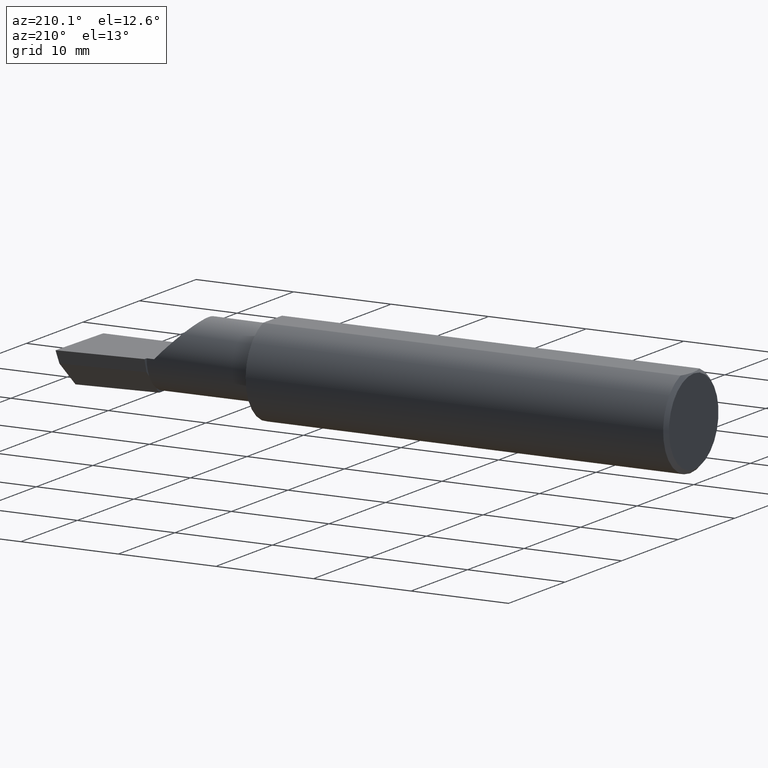
[diagram: clean part render]
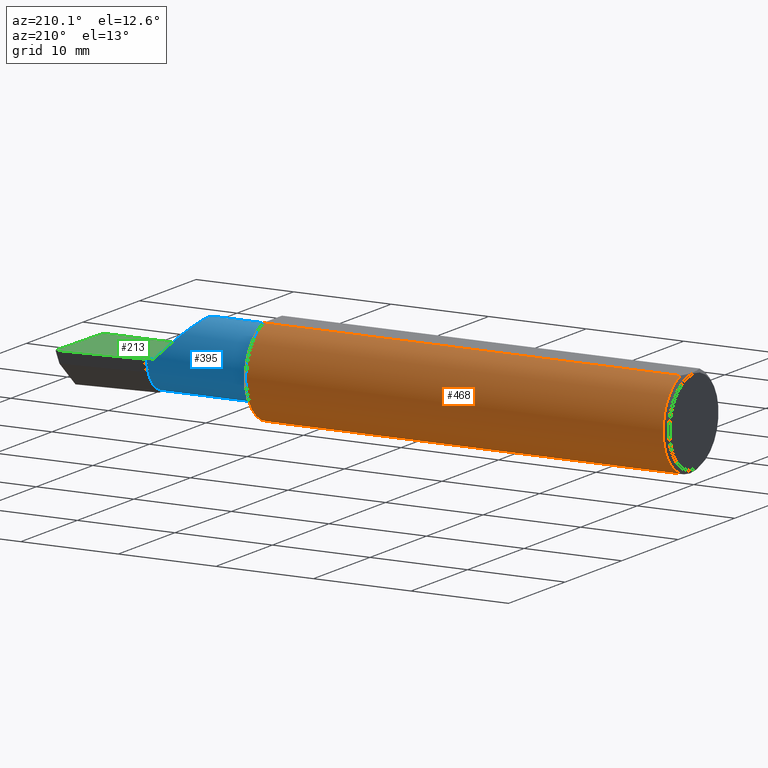
[diagram: same view with three faces highlighted in distinct colors, each labeled with its STEP entity id]
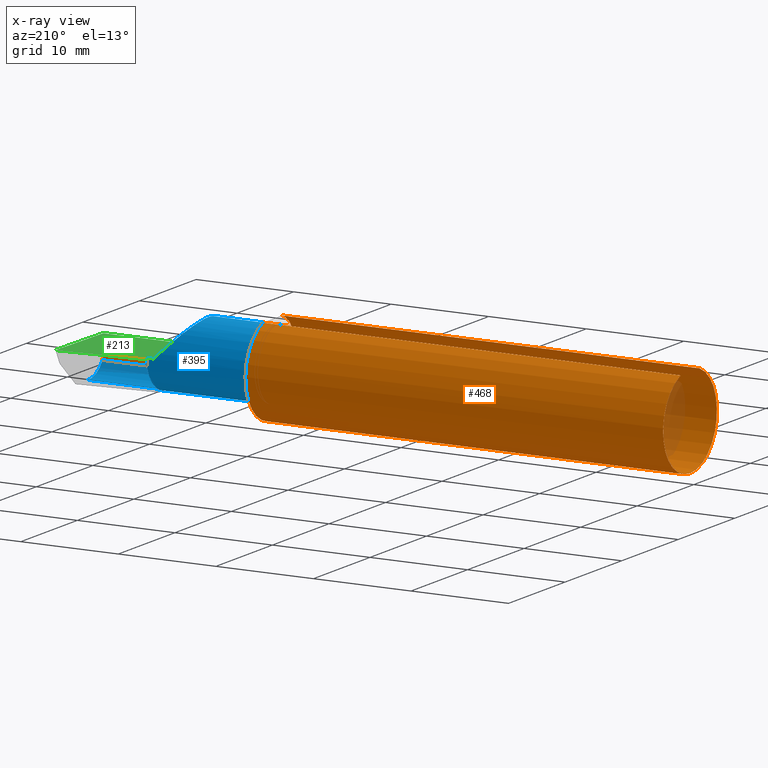
[diagram: x-ray of the same camera — body ghosted, the three highlighted faces saturated]
A machine part, auxiliary view with three faces highlighted in distinct colors.
The next image is the same camera in x-ray (body ghosted, the three faces saturated) — at least one of them is partly hidden behind the body in this view.
Their STEP definitions:

[orange] entity #468 — the highlighted cylindrical surface (partial cylindrical patch) has radius 4.7587 mm, axis along (-1, -0, -0).
#1 = ORIENTED_EDGE ( 'NONE', *, *, #519, .F. ) ;
#4 = AXIS2_PLACEMENT_3D ( 'NONE', #473, #232, #470 ) ;
#5 = DIRECTION ( 'NONE',  ( -1.000000000000000000, -0.000000000000000000, -0.000000000000000000 ) ) ;
#26 = CARTESIAN_POINT ( 'NONE',  ( 2.481080296960508580, -0.1635956445993030084, -0.09130436773856176469 ) ) ;
#30 = CARTESIAN_POINT ( 'NONE',  ( 1.712204638458737049, -0.1550630761760521670, 0.1052254855377565551 ) ) ;
#42 = EDGE_CURVE ( 'NONE', #275, #376, #399, .T. ) ;
#43 = VECTOR ( 'NONE', #286, 39.37007874015748143 ) ;
#49 = CARTESIAN_POINT ( 'NONE',  ( 1.701903396790307221, -0.1248165254919059997, -0.1399798634953948184 ) ) ;
#51 = EDGE_CURVE ( 'NONE', #80, #325, #625, .T. ) ;
#54 = ORIENTED_EDGE ( 'NONE', *, *, #530, .F. ) ;
#59 = CARTESIAN_POINT ( 'NONE',  ( 1.700000000000000178, -0.1045082199249679489, -0.1557306416133595883 ) ) ;
#62 = LINE ( 'NONE', #242, #99 ) ;
#68 = CARTESIAN_POINT ( 'NONE',  ( 1.716855994529494334, -0.1603175578889966812, 0.09696363432848482955 ) ) ;
#69 = VERTEX_POINT ( 'NONE', #534 ) ;
#73 = CARTESIAN_POINT ( 'NONE',  ( 0.01499999999999999424, 0.06597272163553663527, 0.1753499999999999781 ) ) ;
#78 = VECTOR ( 'NONE', #5, 39.37007874015748143 ) ;
#79 = CARTESIAN_POINT ( 'NONE',  ( 2.481080296960508580, -0.1635956445993030084, -0.09130436773856176469 ) ) ;
#80 = VERTEX_POINT ( 'NONE', #73 ) ;
#84 = VERTEX_POINT ( 'NONE', #173 ) ;
#85 = FACE_OUTER_BOUND ( 'NONE', #413, .T. ) ;
#87 = LINE ( 'NONE', #227, #602 ) ;
#90 = ORIENTED_EDGE ( 'NONE', *, *, #274, .F. ) ;
#92 = ORIENTED_EDGE ( 'NONE', *, *, #596, .F. ) ;
#93 = EDGE_CURVE ( 'NONE', #448, #420, #514, .T. ) ;
#94 = CARTESIAN_POINT ( 'NONE',  ( 2.487725449370724817, -0.1873500000000000443, -0.03213820089768506388 ) ) ;
#99 = VECTOR ( 'NONE', #584, 39.37007874015748143 ) ;
#104 = VERTEX_POINT ( 'NONE', #459 ) ;
#119 = CIRCLE ( 'NONE', #308, 0.1873499999999999888 ) ;
#126 = DIRECTION ( 'NONE',  ( 0.000000000000000000, 1.000000000000000000, 0.000000000000000000 ) ) ;
#144 = CARTESIAN_POINT ( 'NONE',  ( 1.699999999999999956, -0.06597272163553659363, 0.1753499999999999781 ) ) ;
#145 = ORIENTED_EDGE ( 'NONE', *, *, #93, .T. ) ;
#148 = CARTESIAN_POINT ( 'NONE',  ( 1.699999999999999956, -0.09715400696864101571, -0.1601908905959925355 ) ) ;
#164 = CARTESIAN_POINT ( 'NONE',  ( 0.01499999999999997863, -0.06597272163553657975, 0.1753499999999999781 ) ) ;
#173 = CARTESIAN_POINT ( 'NONE',  ( 0.01499999999999999424, 0.000000000000000000, -0.1873499999999999888 ) ) ;
#176 =( BOUNDED_CURVE ( )  B_SPLINE_CURVE ( 3, ( #305, #567, #427, #183 ),
 .UNSPECIFIED., .F., .T. ) 
 B_SPLINE_CURVE_WITH_KNOTS ( ( 4, 4 ),
 ( 4.712388980384689674, 5.221437360734125122 ),
 .UNSPECIFIED. ) 
 CURVE ( )  GEOMETRIC_REPRESENTATION_ITEM ( )  RATIONAL_B_SPLINE_CURVE ( ( 1.000000000000000000, 0.9785221379938656705, 0.9785221379938656705, 1.000000000000000000 ) ) 
 REPRESENTATION_ITEM ( '' )  );
#182 = ORIENTED_EDGE ( 'NONE', *, *, #186, .F. ) ;
#183 = CARTESIAN_POINT ( 'NONE',  ( 2.038695632261437130, -0.1635956445993029529, 0.09130436773856191734 ) ) ;
#186 = EDGE_CURVE ( 'NONE', #80, #84, #233, .T. ) ;
#188 = CARTESIAN_POINT ( 'NONE',  ( 1.724999999999999867, -0.1635956445993029251, -0.09130436773856190347 ) ) ;
#196 = CARTESIAN_POINT ( 'NONE',  ( 3.377502344341257155E-32, -0.1873499999999999610, 3.267291166268304703E-16 ) ) ;
#198 = AXIS2_PLACEMENT_3D ( 'NONE', #402, #250, #442 ) ;
#211 = B_SPLINE_CURVE_WITH_KNOTS ( 'NONE', 3,
 ( #591, #353, #548, #409, #363, #599, #609, #30, #310, #68, #355, #315, #366, #258 ),
 .UNSPECIFIED., .F., .F.,
 ( 4, 2, 2, 2, 2, 2, 4 ),
 ( 0.0002471551878304205298, 0.0008987327522055599521, 0.001550310316580699212, 0.002201887880955839122, 0.002527676663143408210, 0.002690571054237193404, 0.002853465445330977731 ),
 .UNSPECIFIED. ) ;
#217 = CARTESIAN_POINT ( 'NONE',  ( 2.491672876940991710, -0.1873499999999999888, 6.915950918908297591E-17 ) ) ;
#218 = CARTESIAN_POINT ( 'NONE',  ( 2.484117089522337452, -0.1792580844883771007, -0.06324101202936138755 ) ) ;
#227 = CARTESIAN_POINT ( 'NONE',  ( 1.942499999999999893, -0.1635956445993030084, -0.09130436773856176469 ) ) ;
#229 = CARTESIAN_POINT ( 'NONE',  ( 1.724999999999999867, -0.1635956445993029251, -0.09130436773856190347 ) ) ;
#232 = DIRECTION ( 'NONE',  ( -1.000000000000000000, -0.000000000000000000, -0.000000000000000000 ) ) ;
#233 = CIRCLE ( 'NONE', #198, 0.1873499999999999888 ) ;
#242 = CARTESIAN_POINT ( 'NONE',  ( 1.942499999999999893, -0.1635956445993030084, 0.09130436773856176469 ) ) ;
#250 = DIRECTION ( 'NONE',  ( -1.000000000000000000, -0.000000000000000000, -0.000000000000000000 ) ) ;
#258 = CARTESIAN_POINT ( 'NONE',  ( 1.724999999999999867, -0.1635956445993027586, 0.09130436773856215327 ) ) ;
#262 = B_SPLINE_CURVE_WITH_KNOTS ( 'NONE', 3,
 ( #229, #332, #531, #283, #478, #430, #624, #532, #579, #495, #49, #488, #59, #148 ),
 .UNSPECIFIED., .F., .F.,
 ( 4, 2, 2, 2, 2, 2, 4 ),
 ( 1.968340875534775581E-07, 0.0001667114270246284366, 0.0003332260199617034032, 0.0006662552058358533905, 0.001332313577584147510, 0.001998371949332441305, 0.002664430321080735534 ),
 .UNSPECIFIED. ) ;
#274 = EDGE_CURVE ( 'NONE', #400, #316, #211, .T. ) ;
#275 = VERTEX_POINT ( 'NONE', #26 ) ;
#283 = CARTESIAN_POINT ( 'NONE',  ( 1.717975941902153192, -0.1612443294219078060, -0.09540922431498248535 ) ) ;
#286 = DIRECTION ( 'NONE',  ( -1.000000000000000000, -0.000000000000000000, -0.000000000000000000 ) ) ;
#290 = ORIENTED_EDGE ( 'NONE', *, *, #335, .F. ) ;
#305 = CARTESIAN_POINT ( 'NONE',  ( 2.129999999999999893, -0.1873499999999999888, 1.065442715258197396E-16 ) ) ;
#308 = AXIS2_PLACEMENT_3D ( 'NONE', #618, #612, #621 ) ;
#310 = CARTESIAN_POINT ( 'NONE',  ( 1.713764108097882932, -0.1573043405450769705, 0.1018329020719639239 ) ) ;
#315 = CARTESIAN_POINT ( 'NONE',  ( 1.720903862568968989, -0.1628809688430619684, 0.09258733509388511473 ) ) ;
#316 = VERTEX_POINT ( 'NONE', #508 ) ;
#325 = VERTEX_POINT ( 'NONE', #603 ) ;
#332 = CARTESIAN_POINT ( 'NONE',  ( 1.722779935319434408, -0.1635956445993029529, -0.09130436773856197286 ) ) ;
#335 = EDGE_CURVE ( 'NONE', #448, #400, #601, .T. ) ;
#353 = CARTESIAN_POINT ( 'NONE',  ( 1.699999999999999734, -0.1045012500212951778, 0.1557348687830036327 ) ) ;
#355 = CARTESIAN_POINT ( 'NONE',  ( 1.718001859868116821, -0.1612625562479369223, 0.09537826053888202871 ) ) ;
#363 = CARTESIAN_POINT ( 'NONE',  ( 1.703025912205683445, -0.1310442973014112333, 0.1341609063345044761 ) ) ;
#366 = CARTESIAN_POINT ( 'NONE',  ( 1.722800914500664637, -0.1635956445997546194, 0.09130436773775278680 ) ) ;
#370 = DIRECTION ( 'NONE',  ( 1.000000000000000000, 0.000000000000000000, 0.000000000000000000 ) ) ;
#373 = AXIS2_PLACEMENT_3D ( 'NONE', #528, #374, #522 ) ;
#374 = DIRECTION ( 'NONE',  ( -1.000000000000000000, -0.000000000000000000, -0.000000000000000000 ) ) ;
#376 = VERTEX_POINT ( 'NONE', #217 ) ;
#399 =( BOUNDED_CURVE ( )  B_SPLINE_CURVE ( 3, ( #79, #218, #94, #510 ),
 .UNSPECIFIED., .F., .F. ) 
 B_SPLINE_CURVE_WITH_KNOTS ( ( 4, 4 ),
 ( 0.8516985021657650368, 1.360746882515200484 ),
 .UNSPECIFIED. ) 
 CURVE ( )  GEOMETRIC_REPRESENTATION_ITEM ( )  RATIONAL_B_SPLINE_CURVE ( ( 1.000000000000000000, 0.9785221379938656705, 0.9785221379938656705, 1.000000000000000000 ) ) 
 REPRESENTATION_ITEM ( '' )  );
#400 = VERTEX_POINT ( 'NONE', #563 ) ;
#402 = CARTESIAN_POINT ( 'NONE',  ( 0.01499999999999999424, 0.000000000000000000, 0.000000000000000000 ) ) ;
#409 = CARTESIAN_POINT ( 'NONE',  ( 1.701891754936544654, -0.1247344934163565205, 0.1400506178720503370 ) ) ;
#410 = EDGE_CURVE ( 'NONE', #104, #443, #176, .T. ) ;
#413 = EDGE_LOOP ( 'NONE', ( #1, #497, #416, #617, #92, #90, #290, #145, #569, #182, #506, #588, #54 ) ) ;
#416 = ORIENTED_EDGE ( 'NONE', *, *, #562, .T. ) ;
#420 = VERTEX_POINT ( 'NONE', #164 ) ;
#423 = CYLINDRICAL_SURFACE ( 'NONE', #4, 0.1873499999999999888 ) ;
#427 = CARTESIAN_POINT ( 'NONE',  ( 2.066758987970638284, -0.1792580844883770730, 0.06324101202936138755 ) ) ;
#430 = CARTESIAN_POINT ( 'NONE',  ( 1.713743174082348997, -0.1572750258711007598, -0.1018777902325216644 ) ) ;
#437 = LINE ( 'NONE', #196, #78 ) ;
#439 = VERTEX_POINT ( 'NONE', #188 ) ;
#442 = DIRECTION ( 'NONE',  ( 0.000000000000000000, 0.000000000000000000, 1.000000000000000000 ) ) ;
#443 = VERTEX_POINT ( 'NONE', #481 ) ;
#448 = VERTEX_POINT ( 'NONE', #144 ) ;
#458 = EDGE_CURVE ( 'NONE', #84, #420, #590, .T. ) ;
#459 = CARTESIAN_POINT ( 'NONE',  ( 2.129999999999999893, -0.1873499999999999888, 1.065442715258197396E-16 ) ) ;
#468 = ADVANCED_FACE ( 'NONE', ( #85 ), #423, .T. ) ;
#470 = DIRECTION ( 'NONE',  ( 0.000000000000000000, 0.000000000000000000, 1.000000000000000000 ) ) ;
#473 = CARTESIAN_POINT ( 'NONE',  ( 0.000000000000000000, 0.000000000000000000, 0.000000000000000000 ) ) ;
#478 = CARTESIAN_POINT ( 'NONE',  ( 1.716814909379087872, -0.1602818635245156220, -0.09702252612905325202 ) ) ;
#479 = CARTESIAN_POINT ( 'NONE',  ( 0.000000000000000000, -0.06597272163553657975, 0.1753499999999999781 ) ) ;
#481 = CARTESIAN_POINT ( 'NONE',  ( 2.038695632261437130, -0.1635956445993029529, 0.09130436773856191734 ) ) ;
#488 = CARTESIAN_POINT ( 'NONE',  ( 1.700384441902395238, -0.1115101367984837888, -0.1507946173152225899 ) ) ;
#495 = CARTESIAN_POINT ( 'NONE',  ( 1.703041727949557549, -0.1311116946065050415, -0.1340922927843371804 ) ) ;
#497 = ORIENTED_EDGE ( 'NONE', *, *, #42, .T. ) ;
#500 = EDGE_CURVE ( 'NONE', #69, #325, #119, .T. ) ;
#506 = ORIENTED_EDGE ( 'NONE', *, *, #51, .T. ) ;
#508 = CARTESIAN_POINT ( 'NONE',  ( 1.724999999999999867, -0.1635956445993027586, 0.09130436773856215327 ) ) ;
#510 = CARTESIAN_POINT ( 'NONE',  ( 2.491672876940991710, -0.1873499999999999888, 6.915950918908297591E-17 ) ) ;
#514 = LINE ( 'NONE', #479, #43 ) ;
#519 = EDGE_CURVE ( 'NONE', #275, #439, #87, .T. ) ;
#522 = DIRECTION ( 'NONE',  ( 0.000000000000000000, 0.000000000000000000, 1.000000000000000000 ) ) ;
#528 = CARTESIAN_POINT ( 'NONE',  ( 0.01499999999999999424, 0.000000000000000000, 0.000000000000000000 ) ) ;
#530 = EDGE_CURVE ( 'NONE', #439, #69, #262, .T. ) ;
#531 = CARTESIAN_POINT ( 'NONE',  ( 1.720881499230869416, -0.1628722075910989386, -0.09260290410947896733 ) ) ;
#532 = CARTESIAN_POINT ( 'NONE',  ( 1.708068207442170472, -0.1478915270140208349, -0.1153063024254927099 ) ) ;
#534 = CARTESIAN_POINT ( 'NONE',  ( 1.699999999999999956, -0.09715400696864101571, -0.1601908905959925355 ) ) ;
#548 = CARTESIAN_POINT ( 'NONE',  ( 1.700383728133729733, -0.1114837668894149425, 0.1508119329971098488 ) ) ;
#550 = CARTESIAN_POINT ( 'NONE',  ( 1.699999999999999956, 0.000000000000000000, 0.000000000000000000 ) ) ;
#553 = DIRECTION ( 'NONE',  ( 1.000000000000000000, 6.829619984160658046E-18, 0.000000000000000000 ) ) ;
#562 = EDGE_CURVE ( 'NONE', #376, #104, #437, .T. ) ;
#563 = CARTESIAN_POINT ( 'NONE',  ( 1.699999999999999956, -0.09715400696864101571, 0.1601908905959925355 ) ) ;
#564 = VECTOR ( 'NONE', #370, 39.37007874015748143 ) ;
#565 = CARTESIAN_POINT ( 'NONE',  ( 0.000000000000000000, 0.06597272163553663527, 0.1753499999999999781 ) ) ;
#567 = CARTESIAN_POINT ( 'NONE',  ( 2.097861799102314961, -0.1873500000000000165, 0.03213820089768509858 ) ) ;
#569 = ORIENTED_EDGE ( 'NONE', *, *, #458, .F. ) ;
#572 = DIRECTION ( 'NONE',  ( -1.000000000000000000, -6.829619984160658046E-18, -0.000000000000000000 ) ) ;
#579 = CARTESIAN_POINT ( 'NONE',  ( 1.706145841430604326, -0.1426194794824336698, -0.1217813759115470157 ) ) ;
#584 = DIRECTION ( 'NONE',  ( 1.000000000000000000, 6.829619984160658046E-18, 0.000000000000000000 ) ) ;
#588 = ORIENTED_EDGE ( 'NONE', *, *, #500, .F. ) ;
#590 = CIRCLE ( 'NONE', #373, 0.1873499999999999888 ) ;
#591 = CARTESIAN_POINT ( 'NONE',  ( 1.699999999999999956, -0.09715400696864101571, 0.1601908905959925355 ) ) ;
#596 = EDGE_CURVE ( 'NONE', #316, #443, #62, .T. ) ;
#599 = CARTESIAN_POINT ( 'NONE',  ( 1.706142321956750418, -0.1426151417460928550, 0.1217894822571234936 ) ) ;
#601 = CIRCLE ( 'NONE', #622, 0.1873499999999999888 ) ;
#602 = VECTOR ( 'NONE', #572, 39.37007874015748143 ) ;
#603 = CARTESIAN_POINT ( 'NONE',  ( 1.699999999999999956, 0.06597272163553663527, 0.1753499999999999781 ) ) ;
#609 = CARTESIAN_POINT ( 'NONE',  ( 1.708072954143139865, -0.1479074971576196662, 0.1152872342625233942 ) ) ;
#612 = DIRECTION ( 'NONE',  ( 1.000000000000000000, 6.829619984160658046E-18, 0.000000000000000000 ) ) ;
#617 = ORIENTED_EDGE ( 'NONE', *, *, #410, .T. ) ;
#618 = CARTESIAN_POINT ( 'NONE',  ( 1.699999999999999956, 0.000000000000000000, 0.000000000000000000 ) ) ;
#621 = DIRECTION ( 'NONE',  ( 0.000000000000000000, 1.000000000000000000, 0.000000000000000000 ) ) ;
#622 = AXIS2_PLACEMENT_3D ( 'NONE', #550, #553, #126 ) ;
#624 = CARTESIAN_POINT ( 'NONE',  ( 1.712184598714912687, -0.1550322129197695409, -0.1052705638704085067 ) ) ;
#625 = LINE ( 'NONE', #565, #564 ) ;

[blue] entity #395 — the highlighted cylindrical surface (partial cylindrical patch) has radius 3.5573 mm, axis along (-1, -0, -0).
#12 = CARTESIAN_POINT ( 'NONE',  ( 1.921229036482944075, -0.06260079402492431389, 0.2087709635170538203 ) ) ;
#13 = CARTESIAN_POINT ( 'NONE',  ( 2.160000000000000142, 0.01441505128072280949, -0.1202356058309981546 ) ) ;
#14 = VECTOR ( 'NONE', #295, 39.37007874015748143 ) ;
#15 = AXIS2_PLACEMENT_3D ( 'NONE', #201, #352, #294 ) ;
#19 = CARTESIAN_POINT ( 'NONE',  ( 2.477873865042410806, -0.05739999999999999963, -0.1400500000000000633 ) ) ;
#26 = CARTESIAN_POINT ( 'NONE',  ( 2.481080296960508580, -0.1635956445993030084, -0.09130436773856176469 ) ) ;
#27 =( BOUNDED_CURVE ( )  B_SPLINE_CURVE ( 3, ( #236, #46, #381, #570 ),
 .UNSPECIFIED., .F., .T. ) 
 B_SPLINE_CURVE_WITH_KNOTS ( ( 4, 4 ),
 ( 5.632580117768155148, 6.493234751459282528 ),
 .UNSPECIFIED. ) 
 CURVE ( )  GEOMETRIC_REPRESENTATION_ITEM ( )  RATIONAL_B_SPLINE_CURVE ( ( 1.000000000000000000, 0.9392195014330944058, 0.9392195014330944058, 1.000000000000000000 ) ) 
 REPRESENTATION_ITEM ( '' )  );
#35 = ORIENTED_EDGE ( 'NONE', *, *, #610, .F. ) ;
#46 = CARTESIAN_POINT ( 'NONE',  ( 2.477925907309857401, -0.1365595166907235813, -0.1227499502647108609 ) ) ;
#52 = CARTESIAN_POINT ( 'NONE',  ( 2.129999999999999893, 0.08264999999999990410, 1.065442715258197396E-16 ) ) ;
#62 = LINE ( 'NONE', #242, #99 ) ;
#74 = ORIENTED_EDGE ( 'NONE', *, *, #606, .T. ) ;
#82 = DIRECTION ( 'NONE',  ( 6.829619984160658816E-18, -1.000000000000000000, 0.000000000000000000 ) ) ;
#86 = ORIENTED_EDGE ( 'NONE', *, *, #476, .F. ) ;
#87 = LINE ( 'NONE', #227, #602 ) ;
#91 = CARTESIAN_POINT ( 'NONE',  ( 2.160000000000000142, -0.05739999999999999963, -0.1400500000000000633 ) ) ;
#95 = CARTESIAN_POINT ( 'NONE',  ( 1.724999999999999867, -0.05740000000000000657, 0.000000000000000000 ) ) ;
#99 = VECTOR ( 'NONE', #584, 39.37007874015748143 ) ;
#100 = VERTEX_POINT ( 'NONE', #336 ) ;
#106 = EDGE_LOOP ( 'NONE', ( #86, #368, #388, #228, #432, #74, #226, #35, #155, #256 ) ) ;
#107 = LINE ( 'NONE', #393, #234 ) ;
#116 = EDGE_CURVE ( 'NONE', #284, #494, #291, .T. ) ;
#122 = DIRECTION ( 'NONE',  ( 0.000000000000000000, -1.000000000000000000, 0.000000000000000000 ) ) ;
#155 = ORIENTED_EDGE ( 'NONE', *, *, #356, .T. ) ;
#161 = DIRECTION ( 'NONE',  ( 1.000000000000000000, 6.829619984160658046E-18, 0.000000000000000000 ) ) ;
#166 = DIRECTION ( 'NONE',  ( -1.000000000000000000, -6.829619984160658046E-18, -0.000000000000000000 ) ) ;
#170 = CARTESIAN_POINT ( 'NONE',  ( 2.160000000000000142, -0.05739999999999999963, 0.000000000000000000 ) ) ;
#172 = CARTESIAN_POINT ( 'NONE',  ( 2.129999999999999893, 0.08264999999999990410, 1.065442715258197396E-16 ) ) ;
#181 = DIRECTION ( 'NONE',  ( -1.000000000000000000, -6.829619984160658046E-18, -0.000000000000000000 ) ) ;
#187 = VERTEX_POINT ( 'NONE', #13 ) ;
#188 = CARTESIAN_POINT ( 'NONE',  ( 1.724999999999999867, -0.1635956445993029251, -0.09130436773856190347 ) ) ;
#201 = CARTESIAN_POINT ( 'NONE',  ( 2.160000000000000142, -0.05739999999999999963, 0.000000000000000000 ) ) ;
#224 = AXIS2_PLACEMENT_3D ( 'NONE', #453, #560, #261 ) ;
#226 = ORIENTED_EDGE ( 'NONE', *, *, #293, .T. ) ;
#227 = CARTESIAN_POINT ( 'NONE',  ( 1.942499999999999893, -0.1635956445993030084, -0.09130436773856176469 ) ) ;
#228 = ORIENTED_EDGE ( 'NONE', *, *, #596, .T. ) ;
#234 = VECTOR ( 'NONE', #161, 39.37007874015748143 ) ;
#236 = CARTESIAN_POINT ( 'NONE',  ( 2.481080296960508580, -0.1635956445993030084, -0.09130436773856176469 ) ) ;
#239 = CARTESIAN_POINT ( 'NONE',  ( 1.975085956200449022, 0.08265000000000000124, 0.1549140437995494002 ) ) ;
#242 = CARTESIAN_POINT ( 'NONE',  ( 1.942499999999999893, -0.1635956445993030084, 0.09130436773856176469 ) ) ;
#252 = CIRCLE ( 'NONE', #15, 0.1400500000000000356 ) ;
#254 = CYLINDRICAL_SURFACE ( 'NONE', #492, 0.1400500000000000078 ) ;
#256 = ORIENTED_EDGE ( 'NONE', *, *, #116, .F. ) ;
#261 = DIRECTION ( 'NONE',  ( 0.000000000000000000, -1.000000000000000000, 0.000000000000000000 ) ) ;
#265 = AXIS2_PLACEMENT_3D ( 'NONE', #95, #181, #323 ) ;
#275 = VERTEX_POINT ( 'NONE', #26 ) ;
#284 = VERTEX_POINT ( 'NONE', #19 ) ;
#291 = LINE ( 'NONE', #303, #14 ) ;
#293 = EDGE_CURVE ( 'NONE', #100, #380, #371, .T. ) ;
#294 = DIRECTION ( 'NONE',  ( 0.000000000000000000, -1.000000000000000000, 0.000000000000000000 ) ) ;
#295 = DIRECTION ( 'NONE',  ( -1.000000000000000000, 5.691349986800549142E-18, -0.000000000000000000 ) ) ;
#303 = CARTESIAN_POINT ( 'NONE',  ( 2.500000000000000000, -0.05739999999999999963, -0.1400500000000000633 ) ) ;
#316 = VERTEX_POINT ( 'NONE', #508 ) ;
#323 = DIRECTION ( 'NONE',  ( 0.000000000000000000, -1.000000000000000000, 0.000000000000000000 ) ) ;
#336 = CARTESIAN_POINT ( 'NONE',  ( 2.160000000000000142, 0.08265000000000004288, 3.267291166268305196E-16 ) ) ;
#352 = DIRECTION ( 'NONE',  ( 1.000000000000000000, 6.829619984160658046E-18, 0.000000000000000000 ) ) ;
#356 = EDGE_CURVE ( 'NONE', #187, #494, #403, .T. ) ;
#358 = FACE_OUTER_BOUND ( 'NONE', #106, .T. ) ;
#368 = ORIENTED_EDGE ( 'NONE', *, *, #519, .T. ) ;
#371 = CIRCLE ( 'NONE', #535, 0.1400500000000000356 ) ;
#378 =( BOUNDED_CURVE ( )  B_SPLINE_CURVE ( 3, ( #536, #12, #239, #52 ),
 .UNSPECIFIED., .F., .T. ) 
 B_SPLINE_CURVE_WITH_KNOTS ( ( 4, 4 ),
 ( 5.422530673488458852, 7.853981633974482790 ),
 .UNSPECIFIED. ) 
 CURVE ( )  GEOMETRIC_REPRESENTATION_ITEM ( )  RATIONAL_B_SPLINE_CURVE ( ( 1.000000000000000000, 0.5651045289226863666, 0.5651045289226863666, 1.000000000000000000 ) ) 
 REPRESENTATION_ITEM ( '' )  );
#380 = VERTEX_POINT ( 'NONE', #414 ) ;
#381 = CARTESIAN_POINT ( 'NONE',  ( 2.476787929832031221, -0.09887019258091186980, -0.1400500000000000356 ) ) ;
#382 = VERTEX_POINT ( 'NONE', #172 ) ;
#388 = ORIENTED_EDGE ( 'NONE', *, *, #428, .F. ) ;
#393 = CARTESIAN_POINT ( 'NONE',  ( -9.564882787816664242E-19, 0.08264999999999998737, 3.267291166268304703E-16 ) ) ;
#395 = ADVANCED_FACE ( 'NONE', ( #358 ), #254, .T. ) ;
#403 = CIRCLE ( 'NONE', #224, 0.1400500000000000356 ) ;
#414 = CARTESIAN_POINT ( 'NONE',  ( 2.160000000000000142, 0.06495571228477960146, -0.06814016562413273415 ) ) ;
#428 = EDGE_CURVE ( 'NONE', #316, #439, #545, .T. ) ;
#432 = ORIENTED_EDGE ( 'NONE', *, *, #544, .T. ) ;
#439 = VERTEX_POINT ( 'NONE', #188 ) ;
#443 = VERTEX_POINT ( 'NONE', #481 ) ;
#453 = CARTESIAN_POINT ( 'NONE',  ( 2.160000000000000142, -0.05739999999999999963, 0.000000000000000000 ) ) ;
#476 = EDGE_CURVE ( 'NONE', #275, #284, #27, .T. ) ;
#481 = CARTESIAN_POINT ( 'NONE',  ( 2.038695632261437130, -0.1635956445993029529, 0.09130436773856191734 ) ) ;
#492 = AXIS2_PLACEMENT_3D ( 'NONE', #595, #166, #82 ) ;
#494 = VERTEX_POINT ( 'NONE', #91 ) ;
#508 = CARTESIAN_POINT ( 'NONE',  ( 1.724999999999999867, -0.1635956445993027586, 0.09130436773856215327 ) ) ;
#519 = EDGE_CURVE ( 'NONE', #275, #439, #87, .T. ) ;
#535 = AXIS2_PLACEMENT_3D ( 'NONE', #170, #558, #122 ) ;
#536 = CARTESIAN_POINT ( 'NONE',  ( 2.038695632261437130, -0.1635956445993029529, 0.09130436773856191734 ) ) ;
#544 = EDGE_CURVE ( 'NONE', #443, #382, #378, .T. ) ;
#545 = CIRCLE ( 'NONE', #265, 0.1400499999999999801 ) ;
#558 = DIRECTION ( 'NONE',  ( -1.000000000000000000, -6.829619984160658046E-18, -0.000000000000000000 ) ) ;
#560 = DIRECTION ( 'NONE',  ( -1.000000000000000000, -6.829619984160658046E-18, -0.000000000000000000 ) ) ;
#570 = CARTESIAN_POINT ( 'NONE',  ( 2.477873865042410806, -0.05739999999999999963, -0.1400500000000000633 ) ) ;
#572 = DIRECTION ( 'NONE',  ( -1.000000000000000000, -6.829619984160658046E-18, -0.000000000000000000 ) ) ;
#584 = DIRECTION ( 'NONE',  ( 1.000000000000000000, 6.829619984160658046E-18, 0.000000000000000000 ) ) ;
#595 = CARTESIAN_POINT ( 'NONE',  ( 0.000000000000000000, -0.05740000000000001351, 0.000000000000000000 ) ) ;
#596 = EDGE_CURVE ( 'NONE', #316, #443, #62, .T. ) ;
#602 = VECTOR ( 'NONE', #572, 39.37007874015748143 ) ;
#606 = EDGE_CURVE ( 'NONE', #382, #100, #107, .T. ) ;
#610 = EDGE_CURVE ( 'NONE', #187, #380, #252, .T. ) ;

[green] entity #213 — the highlighted planar face has unit normal (-0, 0, -1).
#5 = DIRECTION ( 'NONE',  ( -1.000000000000000000, -0.000000000000000000, -0.000000000000000000 ) ) ;
#9 = EDGE_LOOP ( 'NONE', ( #516, #193, #292, #311, #623, #111 ) ) ;
#17 = CARTESIAN_POINT ( 'NONE',  ( 2.129999999999999893, -0.2500000000000000555, 1.065442715258197396E-16 ) ) ;
#31 = CARTESIAN_POINT ( 'NONE',  ( 0.5470260790800316464, -0.05740000000000000657, 2.701812985571356346E-16 ) ) ;
#40 = VERTEX_POINT ( 'NONE', #47 ) ;
#47 = CARTESIAN_POINT ( 'NONE',  ( 2.160000000000000142, 0.09791172361284168624, 3.286754617377316716E-16 ) ) ;
#58 = CARTESIAN_POINT ( 'NONE',  ( 2.500000000000000000, -0.2500000000000000555, 6.829619984160658046E-17 ) ) ;
#65 = VECTOR ( 'NONE', #446, 39.37007874015748143 ) ;
#78 = VECTOR ( 'NONE', #5, 39.37007874015748143 ) ;
#100 = VERTEX_POINT ( 'NONE', #336 ) ;
#103 = EDGE_CURVE ( 'NONE', #40, #474, #271, .T. ) ;
#104 = VERTEX_POINT ( 'NONE', #459 ) ;
#105 = DIRECTION ( 'NONE',  ( -1.000000000000000000, 0.000000000000000000, 1.033731667140896077E-16 ) ) ;
#107 = LINE ( 'NONE', #393, #234 ) ;
#111 = ORIENTED_EDGE ( 'NONE', *, *, #288, .F. ) ;
#161 = DIRECTION ( 'NONE',  ( 1.000000000000000000, 6.829619984160658046E-18, 0.000000000000000000 ) ) ;
#167 = EDGE_CURVE ( 'NONE', #100, #40, #537, .T. ) ;
#172 = CARTESIAN_POINT ( 'NONE',  ( 2.129999999999999893, 0.08264999999999990410, 1.065442715258197396E-16 ) ) ;
#193 = ORIENTED_EDGE ( 'NONE', *, *, #364, .T. ) ;
#196 = CARTESIAN_POINT ( 'NONE',  ( 3.377502344341257155E-32, -0.1873499999999999610, 3.267291166268304703E-16 ) ) ;
#197 = FACE_OUTER_BOUND ( 'NONE', #9, .T. ) ;
#213 = ADVANCED_FACE ( 'NONE', ( #197 ), #583, .F. ) ;
#215 = AXIS2_PLACEMENT_3D ( 'NONE', #58, #449, #105 ) ;
#217 = CARTESIAN_POINT ( 'NONE',  ( 2.491672876940991710, -0.1873499999999999888, 6.915950918908297591E-17 ) ) ;
#220 = LINE ( 'NONE', #17, #441 ) ;
#234 = VECTOR ( 'NONE', #161, 39.37007874015748143 ) ;
#270 = DIRECTION ( 'NONE',  ( 0.02617694830779364323, 0.9996573249755593693, -2.665804247635780349E-18 ) ) ;
#271 = LINE ( 'NONE', #31, #554 ) ;
#288 = EDGE_CURVE ( 'NONE', #104, #382, #220, .T. ) ;
#292 = ORIENTED_EDGE ( 'NONE', *, *, #103, .F. ) ;
#311 = ORIENTED_EDGE ( 'NONE', *, *, #167, .F. ) ;
#334 = CARTESIAN_POINT ( 'NONE',  ( 2.499999999999978684, 0.1306500000000237749, 8.405341369881224661E-14 ) ) ;
#336 = CARTESIAN_POINT ( 'NONE',  ( 2.160000000000000142, 0.08265000000000004288, 3.267291166268305196E-16 ) ) ;
#364 = EDGE_CURVE ( 'NONE', #376, #474, #457, .T. ) ;
#376 = VERTEX_POINT ( 'NONE', #217 ) ;
#382 = VERTEX_POINT ( 'NONE', #172 ) ;
#393 = CARTESIAN_POINT ( 'NONE',  ( -9.564882787816664242E-19, 0.08264999999999998737, 3.267291166268304703E-16 ) ) ;
#411 = VECTOR ( 'NONE', #270, 39.37007874015748854 ) ;
#437 = LINE ( 'NONE', #196, #78 ) ;
#441 = VECTOR ( 'NONE', #455, 39.37007874015748143 ) ;
#446 = DIRECTION ( 'NONE',  ( -6.829619984160658816E-18, 1.000000000000000000, 7.059994452165177242E-34 ) ) ;
#449 = DIRECTION ( 'NONE',  ( -1.033731667140896077E-16, 0.000000000000000000, -1.000000000000000000 ) ) ;
#455 = DIRECTION ( 'NONE',  ( -0.000000000000000000, 1.000000000000000000, -0.000000000000000000 ) ) ;
#457 = LINE ( 'NONE', #512, #411 ) ;
#459 = CARTESIAN_POINT ( 'NONE',  ( 2.129999999999999893, -0.1873499999999999888, 1.065442715258197396E-16 ) ) ;
#474 = VERTEX_POINT ( 'NONE', #334 ) ;
#483 = DIRECTION ( 'NONE',  ( 0.9953961983671787417, 0.09584575252022459191, -1.028972571603813720E-16 ) ) ;
#512 = CARTESIAN_POINT ( 'NONE',  ( 2.490039159128059953, -0.2497391662021650194, 6.932588350567417155E-17 ) ) ;
#516 = ORIENTED_EDGE ( 'NONE', *, *, #562, .F. ) ;
#537 = LINE ( 'NONE', #585, #65 ) ;
#554 = VECTOR ( 'NONE', #483, 39.37007874015748143 ) ;
#562 = EDGE_CURVE ( 'NONE', #376, #104, #437, .T. ) ;
#583 = PLANE ( 'NONE',  #215 ) ;
#585 = CARTESIAN_POINT ( 'NONE',  ( 2.160000000000000142, -0.2500000000000000555, 1.034430765243970311E-16 ) ) ;
#606 = EDGE_CURVE ( 'NONE', #382, #100, #107, .T. ) ;
#623 = ORIENTED_EDGE ( 'NONE', *, *, #606, .F. ) ;